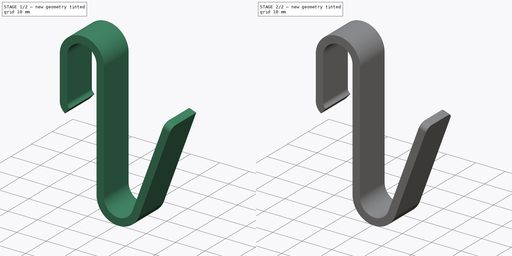
[diagram: build sequence overview — one tinted view per stage of 2, left to right]
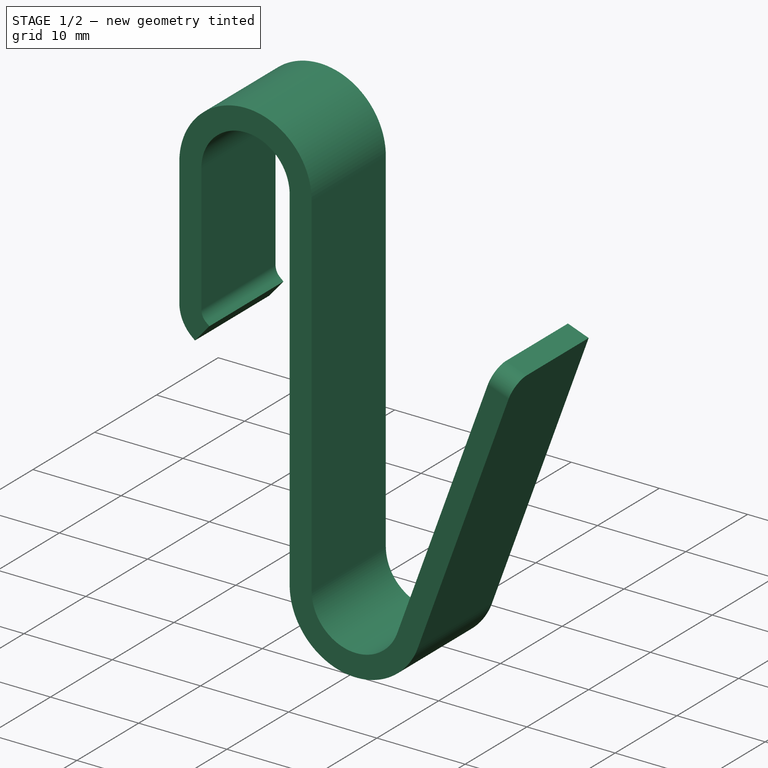
[diagram: stage 1 of 2 — iso view after this stage's code; geometry added in this stage tinted green]
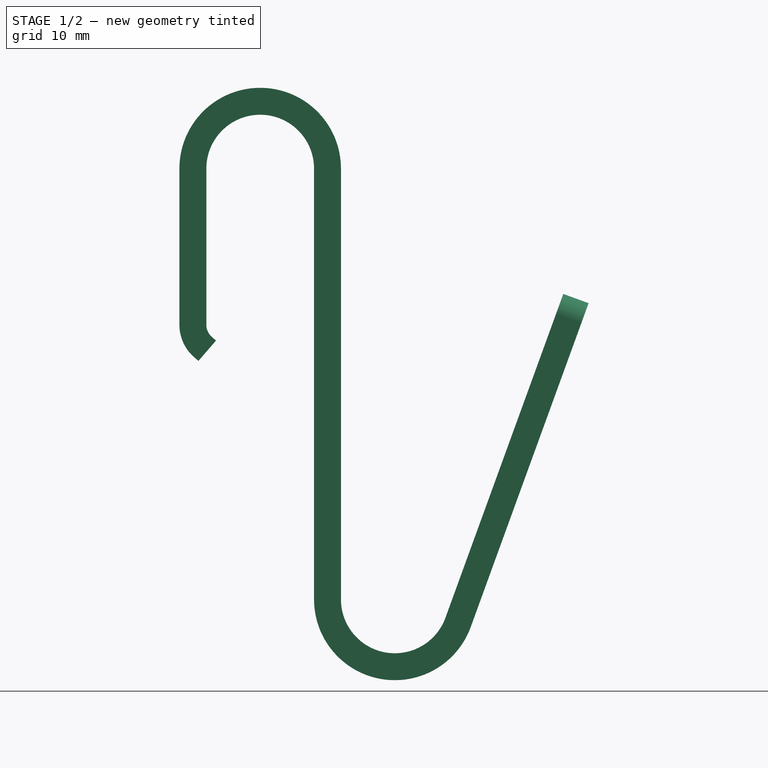
[diagram: stage 1 of 2 — front view after this stage's code; geometry added in this stage tinted green]
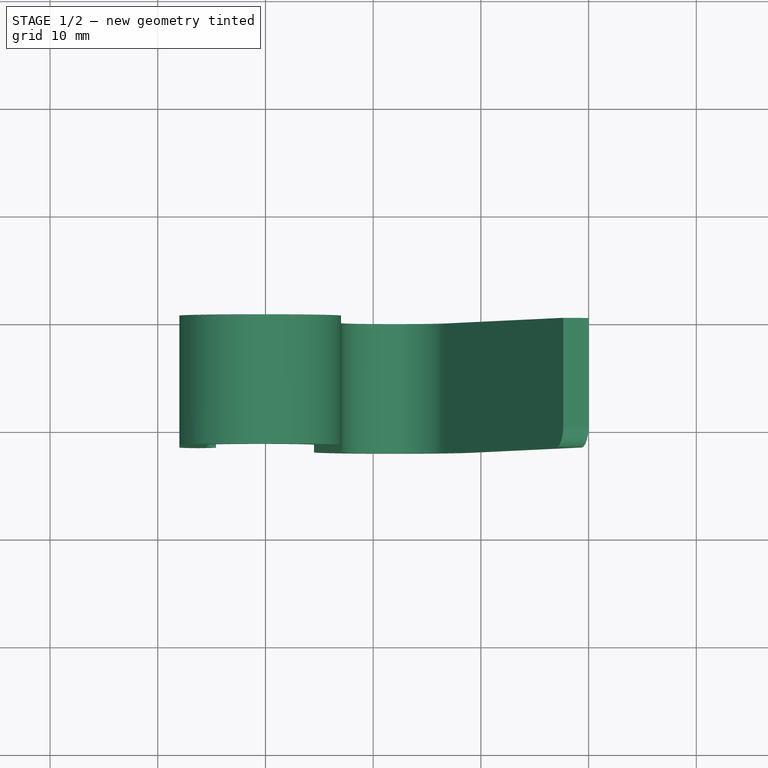
[diagram: stage 1 of 2 — top view after this stage's code; geometry added in this stage tinted green]
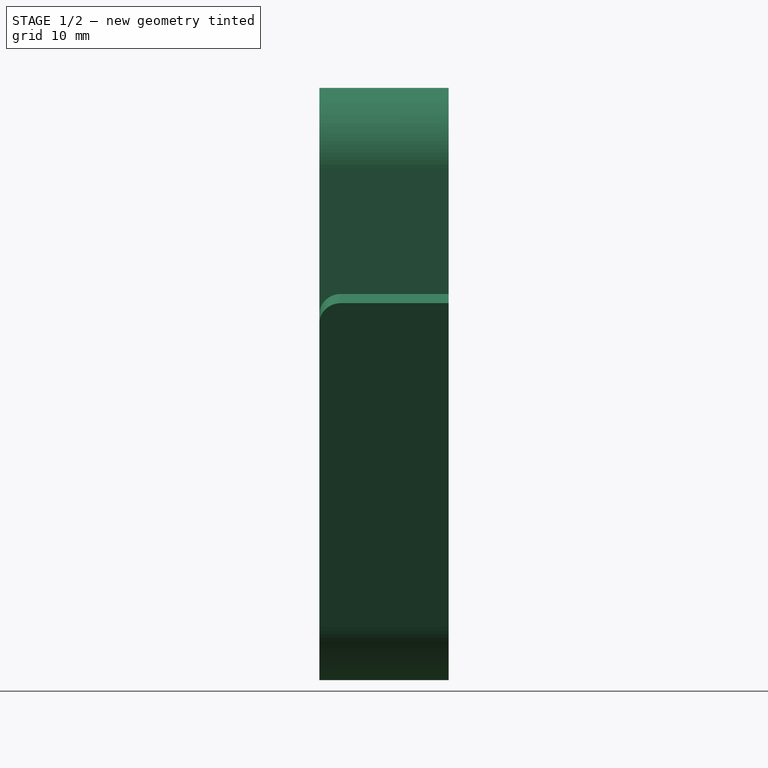
[diagram: stage 1 of 2 — right view after this stage's code; geometry added in this stage tinted green]
FCSTD DOCUMENT  (FreeCAD 1.0R39285 (Git))
Label: ShelfClip
License: All rights reserved
LicenseURL: https://en.wikipedia.org/wiki/All_rights_reserved
objects: PartDesign::Fillet×2, Sketcher::SketchObject×1, App::VarSet×1, PartDesign::Pad×1, PartDesign::Body×1
note: 12 computed .brp shape members not serialized (recipe doc carries the construction recipe); baked Part::Feature solids carry a one-line shape summary decoded from their .brp

FEATURE [Sketcher::SketchObject] Sketch
  ArcFitTolerance = 1e-06
  AttachmentSupport = -> [XZ_Plane]
  FullyConstrained = true
  MakeInternals = false
  MapMode = 5
  Placement = pos=(0,0,0) rot=(1,0,0;1.5708rad)
  expr: Constraints[28] = VarSet.Vars_HookLength
  expr: Constraints[29] = VarSet.Vars_HookRadius
  expr: Constraints[30] = VarSet.Vars_Thickness
  expr: Constraints[31] = VarSet.Vars_ClipIndent / 2
  expr: Constraints[39] = VarSet.Vars_Height
  expr: Constraints[40] = VarSet.Vars_ClipLength
  sketch-geometry (23):
    g0: LineSegment StartX=-35.4923 StartY=-2.00501 StartZ=0 EndX=-35.4923 EndY=12.495 EndZ=0
    g1: LineSegment StartX=-25.4923 StartY=12.495 StartZ=0 EndX=-25.4923 EndY=-27.505 EndZ=0
    g2: LineSegment StartX=-10.9446 StartY=-30.0702 StartZ=0 EndX=0 EndY=0 EndZ=0
    g3: LineSegment StartX=0 StartY=0 StartZ=0 EndX=-2.34923 EndY=0.85505 EndZ=0
    g4: LineSegment StartX=-2.34923 StartY=0.85505 StartZ=0 EndX=-13.2939 EndY=-29.2151 EndZ=0
    g5: LineSegment StartX=-22.9923 StartY=-27.505 StartZ=0 EndX=-22.9923 EndY=12.495 EndZ=0
    g6: LineSegment StartX=-37.9923 StartY=12.495 StartZ=0 EndX=-37.9923 EndY=-2.00501 EndZ=0
    g7: ArcOfCircle CenterX=-30.4923 CenterY=12.495 CenterZ=0 NormalX=0 NormalY=0 NormalZ=1 AngleXU=0 Radius=5 StartAngle=2e-16 EndAngle=3.14159
    g8: ArcOfCircle CenterX=-30.4923 CenterY=12.495 CenterZ=0 NormalX=0 NormalY=0 NormalZ=1 AngleXU=0 Radius=7.5 StartAngle=0 EndAngle=3.14159
    g9: LineSegment [constr] StartX=-35.4923 StartY=12.495 StartZ=0 EndX=-30.4923 EndY=12.495 EndZ=0
    g10: LineSegment [constr] StartX=-30.4923 StartY=12.495 StartZ=0 EndX=-25.4923 EndY=12.495 EndZ=0
    g11: ArcOfCircle CenterX=-17.9923 CenterY=-27.505 CenterZ=0 NormalX=0 NormalY=0 NormalZ=1 AngleXU=0 Radius=5 StartAngle=3.14159 EndAngle=5.93412
    g12: ArcOfCircle CenterX=-17.9923 CenterY=-27.505 CenterZ=0 NormalX=0 NormalY=0 NormalZ=1 AngleXU=0 Radius=7.5 StartAngle=3.14159 EndAngle=5.93412
    g13: LineSegment [constr] StartX=-22.9923 StartY=-27.505 StartZ=0 EndX=-17.9923 EndY=-27.505 EndZ=0
    g14: LineSegment [constr] StartX=-17.9923 StartY=-27.505 StartZ=0 EndX=-13.2939 EndY=-29.2151 EndZ=0
    g15: LineSegment [constr] StartX=-30.4923 StartY=19.995 StartZ=0 EndX=0 EndY=19.995 EndZ=0
    g16: LineSegment [constr] StartX=-17.9923 StartY=-35.005 StartZ=0 EndX=0 EndY=-35.005 EndZ=0
    g17: ArcOfCircle CenterX=-33.9923 CenterY=-2.00501 CenterZ=0 NormalX=0 NormalY=0 NormalZ=1 AngleXU=0 Radius=1.5 StartAngle=3.14159 EndAngle=4.00141
    g18: ArcOfCircle CenterX=-33.9923 CenterY=-2.00501 CenterZ=0 NormalX=0 NormalY=0 NormalZ=1 AngleXU=0 Radius=4 StartAngle=3.14159 EndAngle=4.00141
    g19: LineSegment [constr] StartX=-34.9712 StartY=-3.1416 StartZ=0 EndX=-36.6026 EndY=-5.03591 EndZ=0
    g20: LineSegment StartX=-36.6026 StartY=-5.03591 StartZ=0 EndX=-36.2238 EndY=-5.3622 EndZ=0
    g21: LineSegment StartX=-36.2238 StartY=-5.3622 StartZ=0 EndX=-34.5923 EndY=-3.46789 EndZ=0
    g22: LineSegment StartX=-34.5923 StartY=-3.46789 StartZ=0 EndX=-34.9712 EndY=-3.1416 EndZ=0
  constraints (55):
    c: Vertical(g1)
    c: Coincident(g2,g3)
    c: Coincident(g3,g4)
    c: Parallel(g6,g0)
    c: Parallel(g1,g5)
    c: Parallel(g4,g2)
    c: Coincident(g8,g7)
    c: Coincident(g0,g9)
    c: Coincident(g9,g7)
    c: Coincident(g9,g10)
    c: Coincident(g10,g1)
    c: Angle(g9,g10) = 3.14159
    c: Coincident(g12,g11)
    c: Equal(g4,g2)
    c: Tangent(g11,g4) = 1.5708
    c: Tangent(g11,g5) = 1.5708
    c: Tangent(g12,g1) = -1.5708
    c: Tangent(g12,g2) = -1.5708
    c: Coincident(g13,g5)
    c: Coincident(g13,g11)
    c: Coincident(g14,g11)
    c: Coincident(g14,g4)
    c: Angle(g13,g14) = 2.79253
    c: Tangent(g7,g0) = 1.5708
    c: Tangent(g7,g1) = 1.5708
    c: Tangent(g8,g5) = -1.5708
    c: Tangent(g8,g6) = -1.5708
    c: Equal(g0,g6)
    c: Distance(g2,g2) = 32
    c: Radius(g11) = 5
    c: Distance(g3,g3) = 2.5
    c: Radius(g7) = 5
    c: Coincident(g-1,g2)
    c: Tangent(g15,g8) = 1.5708
    c: PointOnObject(g15,g-2)
    c: Tangent(g16,g12) = -1.5708
    c: PointOnObject(g16,g-2)
    c: Horizontal(g16)
    c: Horizontal(g15)
    c: Distance(g15,g16) = 55
    c: Distance(g6,g15) = 22
    c: Coincident(g18,g17)
    c: Coincident(g18,g6)
    c: Coincident(g18,g19)
    c: Perpendicular(g17,g19) = 4.71239
    c: Tangent(g17,g0) = 1.5708
    c: Radius(g17) = 1.5
    c: Tangent(g18,g20) = -1.5708
    c: Coincident(g20,g21)
    c: Coincident(g21,g22)
    c: Coincident(g22,g17)
    c: Parallel(g20,g22)
    c: Perpendicular(g20,g21)
    c: Distance(g20,g20) = 0.5
    c: Distance(g21,g6) = 3.4
FEATURE [App::VarSet] VarSet
  Vars_ClipIndent = 10
  Vars_ClipLength = 22
  Vars_Height = 55
  Vars_HookLength = 32
  Vars_HookRadius = 5
  Vars_Thickness = 2.5
FEATURE [PartDesign::Pad] Pad
  Direction = (0,-1,2e-16)
  Length = 12
  Length2 = 10
  Placement = pos=(0,0,0) rot=(1,0,0;1.5708rad)
  Profile = -> Sketch
  ReferenceAxis = -> Sketch [N_Axis]
  Refine = true
  Suppressed = false
  Type = 0
FEATURE [PartDesign::Fillet] Fillet
  Base = -> Pad [Edge19]
  BaseFeature = -> Pad
  Placement = pos=(0,0,0) rot=(1,0,0;1.5708rad)
  Radius = 2
  Refine = true
  SupportTransform = false
  Suppressed = false
  UseAllEdges = false
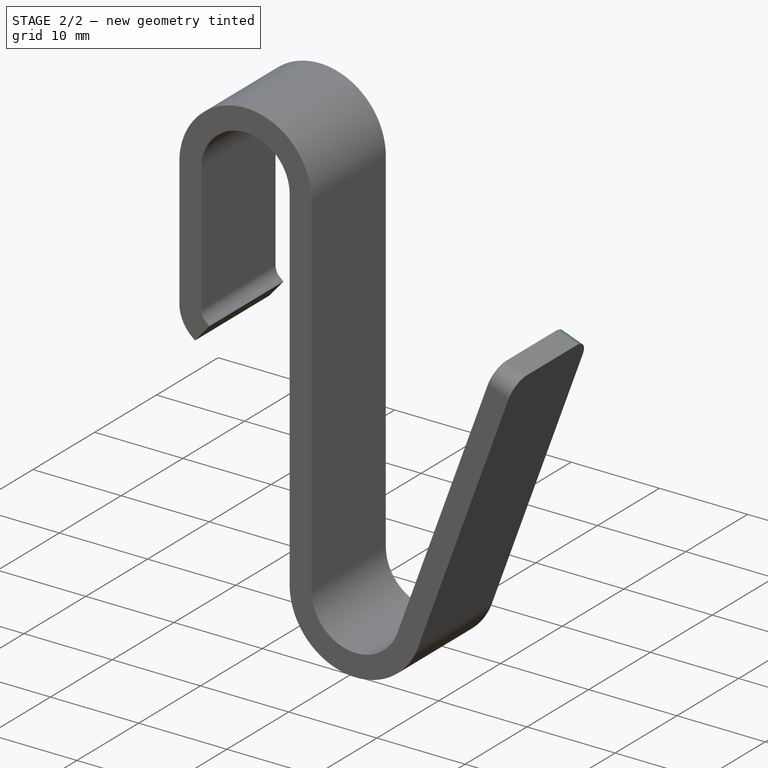
[diagram: stage 2 of 2 — iso view after this stage's code; geometry added in this stage tinted green]
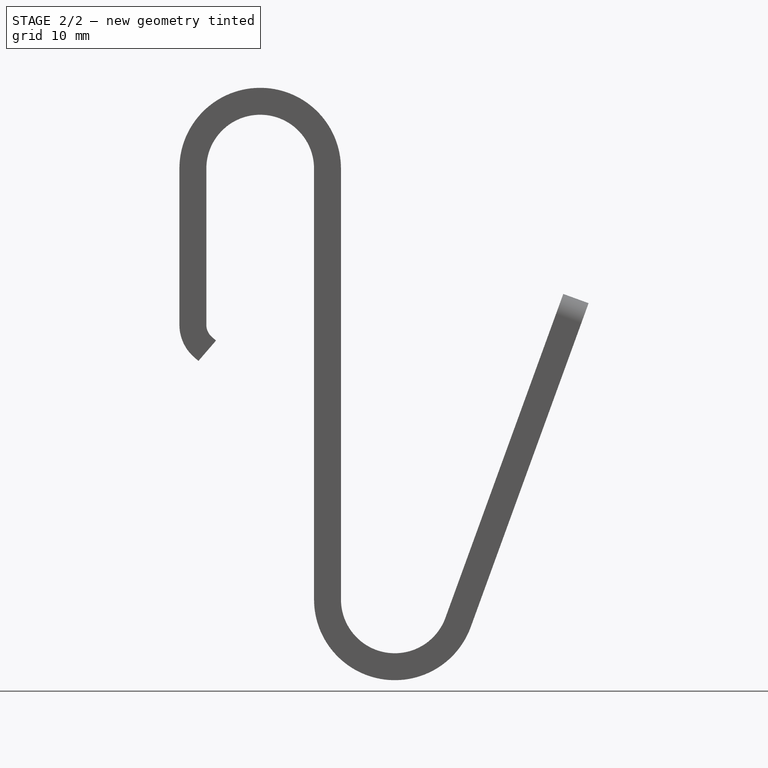
[diagram: stage 2 of 2 — front view after this stage's code; geometry added in this stage tinted green]
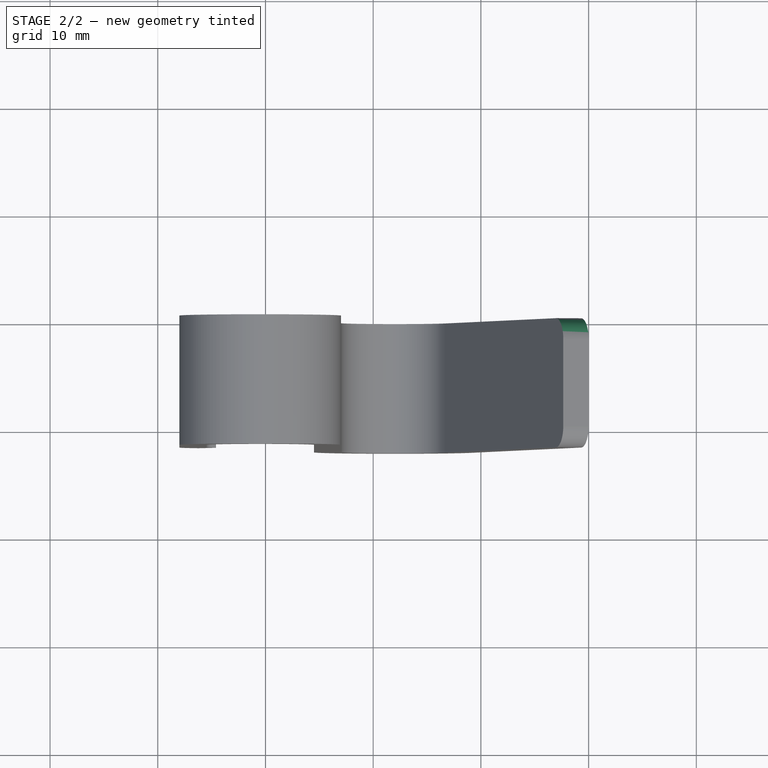
[diagram: stage 2 of 2 — top view after this stage's code; geometry added in this stage tinted green]
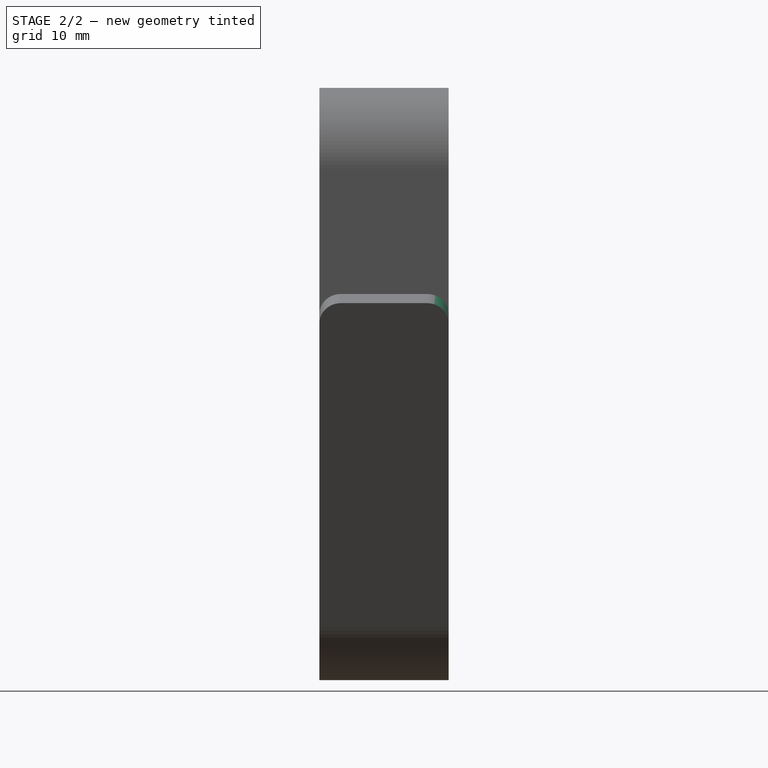
[diagram: stage 2 of 2 — right view after this stage's code; geometry added in this stage tinted green]
FEATURE [PartDesign::Fillet] Fillet001
  Base = -> Fillet [Edge7]
  BaseFeature = -> Fillet
  Placement = pos=(0,0,0) rot=(1,0,0;1.5708rad)
  Radius = 2
  Refine = true
  SupportTransform = false
  Suppressed = false
  UseAllEdges = false
FEATURE [PartDesign::Body] Body  label="Clip"
  AllowCompound = false
  Group = -> [Sketch,VarSet,Pad,Fillet,Fillet001]
  Origin = -> Origin
  Tip = -> Fillet001
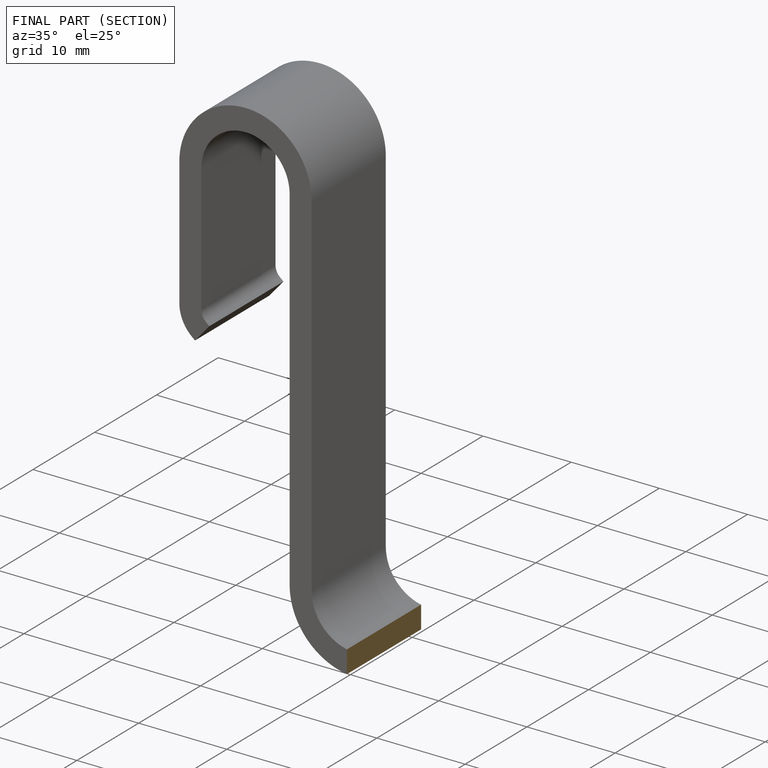
[diagram: finished part — half-section view (interior)]
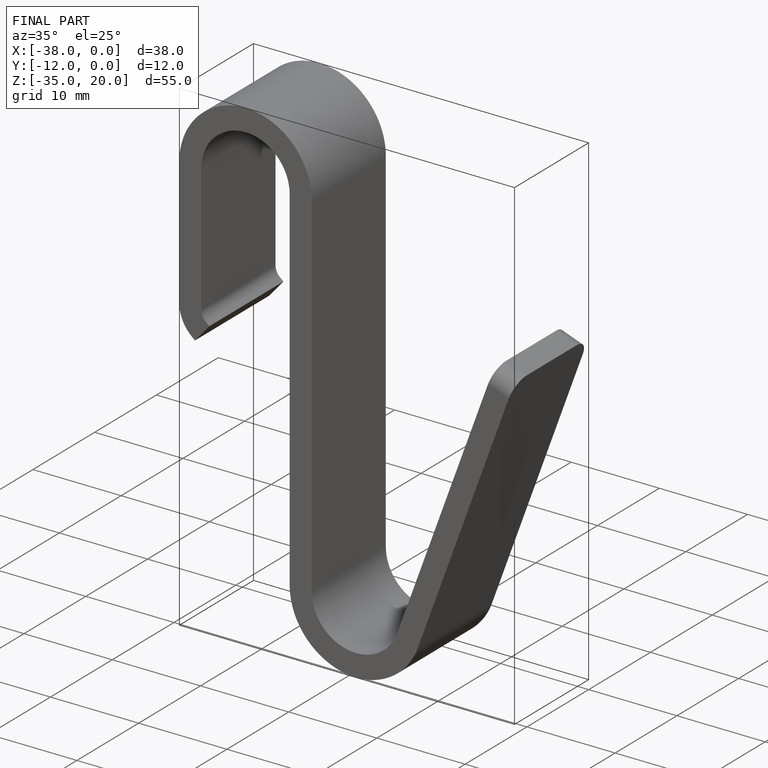
[diagram: finished part — iso view with bounding-box wireframe]
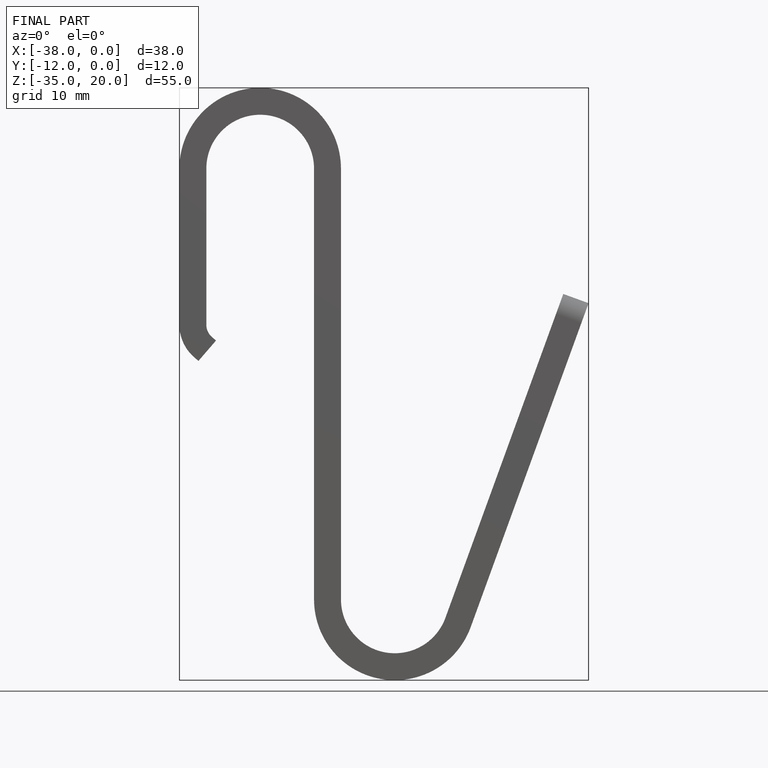
[diagram: finished part — front view with bounding-box wireframe]
